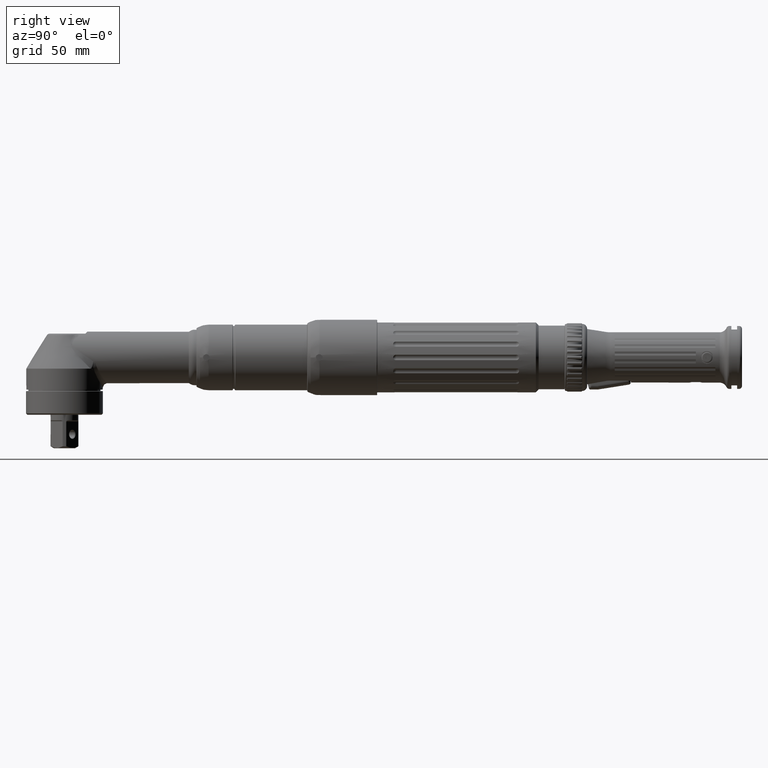
[diagram: clean part render]
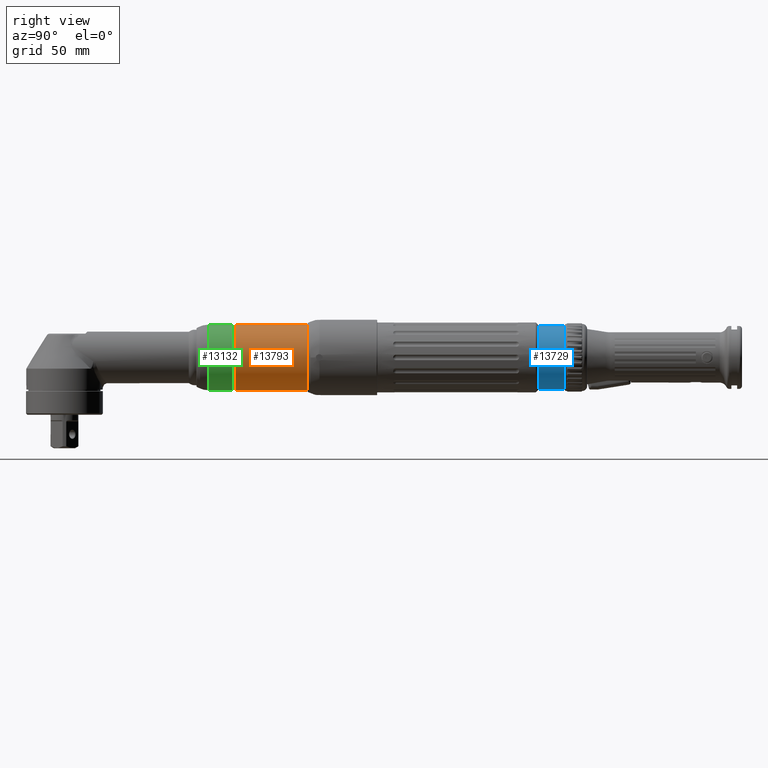
[diagram: same view with three faces highlighted in distinct colors, each labeled with its STEP entity id]
A machine part, right view with three faces highlighted in distinct colors.
Their STEP definitions:

[orange] entity #13793 — the highlighted cylindrical surface (bore or boss wall) has radius 23.5 mm, axis along (0, 1, -0).
#1781=CYLINDRICAL_SURFACE('',#15464,23.5);
#2089=FACE_BOUND('',#4427,.T.);
#3371=FACE_OUTER_BOUND('',#4426,.T.);
#4426=EDGE_LOOP('',(#11618));
#4427=EDGE_LOOP('',(#11619));
#5329=CIRCLE('',#15465,23.5);
#5330=CIRCLE('',#15466,23.5);
#6648=VERTEX_POINT('',#25377);
#6649=VERTEX_POINT('',#25379);
#8374=EDGE_CURVE('',#6648,#6648,#5329,.T.);
#8375=EDGE_CURVE('',#6649,#6649,#5330,.T.);
#11618=ORIENTED_EDGE('',*,*,#8374,.T.);
#11619=ORIENTED_EDGE('',*,*,#8375,.F.);
#13793=ADVANCED_FACE('',(#3371,#2089),#1781,.T.);
#15464=AXIS2_PLACEMENT_3D('',#25376,#19371,#19372);
#15465=AXIS2_PLACEMENT_3D('',#25378,#19373,#19374);
#15466=AXIS2_PLACEMENT_3D('',#25380,#19375,#19376);
#19371=DIRECTION('center_axis',(3.28120398570187E-18,1.,-7.88860905221012E-31));
#19372=DIRECTION('ref_axis',(2.4980018054066E-16,7.97253042510597E-31,1.));
#19373=DIRECTION('center_axis',(-2.53937745722183E-17,-1.,1.13142302886376E-16));
#19374=DIRECTION('ref_axis',(2.4980018054066E-16,7.97253042510597E-31,1.));
#19375=DIRECTION('center_axis',(-3.28120398570187E-18,-1.,7.88860905221012E-31));
#19376=DIRECTION('ref_axis',(-2.4980018054066E-16,-7.97253042510597E-31,
-1.));
#25376=CARTESIAN_POINT('Origin',(2.9803660295546E-14,153.5,-9.02376044615219E-14));
#25377=CARTESIAN_POINT('',(4.82597973920474E-14,173.75,23.4999999999999));
#25378=CARTESIAN_POINT('Origin',(2.98701046762565E-14,173.75,-9.02376044615219E-14));
#25379=CARTESIAN_POINT('',(3.26935069357021E-14,122.25,23.4999999999999));
#25380=CARTESIAN_POINT('Origin',(2.97011226709928E-14,122.25,-9.02376044615219E-14));

[blue] entity #13729 — the highlighted cylindrical surface (bore or boss wall) has radius 22.75 mm, axis along (0, 1, 0).
#1751=CYLINDRICAL_SURFACE('',#15338,22.75);
#2029=FACE_BOUND('',#4303,.T.);
#3307=FACE_OUTER_BOUND('',#4302,.T.);
#4302=EDGE_LOOP('',(#11478));
#4303=EDGE_LOOP('',(#11479));
#5266=CIRCLE('',#15337,22.75);
#5267=CIRCLE('',#15339,22.75);
#6579=VERTEX_POINT('',#25170);
#6580=VERTEX_POINT('',#25173);
#8301=EDGE_CURVE('',#6579,#6579,#5266,.T.);
#8302=EDGE_CURVE('',#6580,#6580,#5267,.T.);
#11478=ORIENTED_EDGE('',*,*,#8302,.F.);
#11479=ORIENTED_EDGE('',*,*,#8301,.F.);
#13729=ADVANCED_FACE('',(#3307,#2029),#1751,.T.);
#15337=AXIS2_PLACEMENT_3D('',#25171,#19107,#19108);
#15338=AXIS2_PLACEMENT_3D('',#25172,#19109,#19110);
#15339=AXIS2_PLACEMENT_3D('',#25174,#19111,#19112);
#19107=DIRECTION('center_axis',(-2.24771080739125E-15,-1.,-5.53995163027522E-15));
#19108=DIRECTION('ref_axis',(5.89199490515593E-47,5.68227460994035E-15,
-1.));
#19109=DIRECTION('center_axis',(1.02551917678732E-29,1.,5.68227460994035E-15));
#19110=DIRECTION('ref_axis',(5.89199490515593E-47,5.68227460994035E-15,
-1.));
#19111=DIRECTION('center_axis',(1.02551917678732E-29,1.,5.68227460994035E-15));
#19112=DIRECTION('ref_axis',(-1.,1.01628604643084E-29,5.76892440316545E-44));
#25170=CARTESIAN_POINT('',(1.12129423717977E-13,339.249999999998,-22.7499999999998));
#25171=CARTESIAN_POINT('Origin',(1.12129423717977E-13,339.249999999999,
1.9745268330937E-13));
#25172=CARTESIAN_POINT('Origin',(1.12129423717977E-13,348.449999999998,
2.49729609720817E-13));
#25173=CARTESIAN_POINT('',(1.12129423717977E-13,357.649999999998,-22.7499999999997));
#25174=CARTESIAN_POINT('Origin',(1.12129423717977E-13,357.649999999998,
3.02006536132268E-13));

[green] entity #13132 — the highlighted cylindrical surface (bore or boss wall) has radius 23.5 mm, axis along (0, 1, 0).
#1601=CYLINDRICAL_SURFACE('',#14020,23.5);
#1890=FACE_BOUND('',#3567,.T.);
#2710=FACE_OUTER_BOUND('',#3566,.T.);
#3566=EDGE_LOOP('',(#8737,#8738,#8739,#8740,#8741,#8742,#8743,#8744,#8745,
#8746,#8747,#8748));
#3567=EDGE_LOOP('',(#8749));
#4618=CIRCLE('',#14008,23.5);
#4619=CIRCLE('',#14009,23.5);
#4620=CIRCLE('',#14010,23.5);
#4621=CIRCLE('',#14011,23.5);
#4626=CIRCLE('',#14021,23.5);
#5411=B_SPLINE_CURVE_WITH_KNOTS('',3,(#20238,#20239,#20240,#20241,#20242,
#20243),.UNSPECIFIED.,.F.,.F.,(4,2,4),(-0.346790081006187,-0.260092696087759,
-0.182050218631956),.UNSPECIFIED.);
#5412=B_SPLINE_CURVE_WITH_KNOTS('',3,(#20244,#20245,#20246,#20247,#20248,
#20249),.UNSPECIFIED.,.F.,.F.,(4,2,4),(-0.511529943380419,-0.433487465924616,
-0.346790081006187),.UNSPECIFIED.);
#5414=B_SPLINE_CURVE_WITH_KNOTS('',3,(#20279,#20280,#20281,#20282,#20283,
#20284),.UNSPECIFIED.,.F.,.F.,(4,2,4),(-0.346790081006187,-0.260092696087759,
-0.182050218631957),.UNSPECIFIED.);
#5415=B_SPLINE_CURVE_WITH_KNOTS('',3,(#20286,#20287,#20288,#20289,#20290,
#20291),.UNSPECIFIED.,.F.,.F.,(4,2,4),(-0.511529943380418,-0.433487465924616,
-0.346790081006187),.UNSPECIFIED.);
#5418=B_SPLINE_CURVE_WITH_KNOTS('',3,(#20346,#20347,#20348,#20349,#20350,
#20351),.UNSPECIFIED.,.F.,.F.,(4,2,4),(-0.346790081006187,-0.260092696087759,
-0.182050218631957),.UNSPECIFIED.);
#5419=B_SPLINE_CURVE_WITH_KNOTS('',3,(#20352,#20353,#20354,#20355,#20356,
#20357),.UNSPECIFIED.,.F.,.F.,(4,2,4),(-0.511529943380418,-0.433487465924616,
-0.346790081006187),.UNSPECIFIED.);
#5421=B_SPLINE_CURVE_WITH_KNOTS('',3,(#20390,#20391,#20392,#20393,#20394,
#20395),.UNSPECIFIED.,.F.,.F.,(4,2,4),(-0.346790081006188,-0.260092696087759,
-0.182050218631957),.UNSPECIFIED.);
#5422=B_SPLINE_CURVE_WITH_KNOTS('',3,(#20396,#20397,#20398,#20399,#20400,
#20401),.UNSPECIFIED.,.F.,.F.,(4,2,4),(-0.511529943380418,-0.433487465924616,
-0.346790081006188),.UNSPECIFIED.);
#5591=VERTEX_POINT('',#20207);
#5592=VERTEX_POINT('',#20208);
#5593=VERTEX_POINT('',#20237);
#5597=VERTEX_POINT('',#20260);
#5599=VERTEX_POINT('',#20278);
#5600=VERTEX_POINT('',#20285);
#5603=VERTEX_POINT('',#20315);
#5604=VERTEX_POINT('',#20316);
#5605=VERTEX_POINT('',#20345);
#5606=VERTEX_POINT('',#20359);
#5607=VERTEX_POINT('',#20360);
#5608=VERTEX_POINT('',#20389);
#5615=VERTEX_POINT('',#20453);
#6833=EDGE_CURVE('',#5593,#5591,#5411,.T.);
#6834=EDGE_CURVE('',#5592,#5593,#5412,.T.);
#6839=EDGE_CURVE('',#5599,#5597,#5414,.T.);
#6840=EDGE_CURVE('',#5600,#5599,#5415,.T.);
#6845=EDGE_CURVE('',#5605,#5603,#5418,.T.);
#6846=EDGE_CURVE('',#5604,#5605,#5419,.T.);
#6848=EDGE_CURVE('',#5608,#5606,#5421,.T.);
#6849=EDGE_CURVE('',#5607,#5608,#5422,.T.);
#6853=EDGE_CURVE('',#5600,#5591,#4618,.T.);
#6854=EDGE_CURVE('',#5592,#5603,#4619,.T.);
#6855=EDGE_CURVE('',#5604,#5606,#4620,.T.);
#6856=EDGE_CURVE('',#5607,#5597,#4621,.T.);
#6861=EDGE_CURVE('',#5615,#5615,#4626,.T.);
#8737=ORIENTED_EDGE('',*,*,#6856,.F.);
#8738=ORIENTED_EDGE('',*,*,#6849,.T.);
#8739=ORIENTED_EDGE('',*,*,#6848,.T.);
#8740=ORIENTED_EDGE('',*,*,#6855,.F.);
#8741=ORIENTED_EDGE('',*,*,#6846,.T.);
#8742=ORIENTED_EDGE('',*,*,#6845,.T.);
#8743=ORIENTED_EDGE('',*,*,#6854,.F.);
#8744=ORIENTED_EDGE('',*,*,#6834,.T.);
#8745=ORIENTED_EDGE('',*,*,#6833,.T.);
#8746=ORIENTED_EDGE('',*,*,#6853,.F.);
#8747=ORIENTED_EDGE('',*,*,#6840,.T.);
#8748=ORIENTED_EDGE('',*,*,#6839,.T.);
#8749=ORIENTED_EDGE('',*,*,#6861,.F.);
#13132=ADVANCED_FACE('',(#2710,#1890),#1601,.T.);
#14008=AXIS2_PLACEMENT_3D('',#20436,#15824,#15825);
#14009=AXIS2_PLACEMENT_3D('',#20437,#15826,#15827);
#14010=AXIS2_PLACEMENT_3D('',#20438,#15828,#15829);
#14011=AXIS2_PLACEMENT_3D('',#20439,#15830,#15831);
#14020=AXIS2_PLACEMENT_3D('',#20452,#15848,#15849);
#14021=AXIS2_PLACEMENT_3D('',#20454,#15850,#15851);
#15824=DIRECTION('center_axis',(0.,-1.,0.));
#15825=DIRECTION('ref_axis',(-0.707106781186548,-5.50762367849798E-18,0.707106781186547));
#15826=DIRECTION('center_axis',(0.,-1.,0.));
#15827=DIRECTION('ref_axis',(-0.707106781186548,-5.50762367849798E-18,0.707106781186547));
#15828=DIRECTION('center_axis',(0.,-1.,0.));
#15829=DIRECTION('ref_axis',(-0.707106781186548,-5.50762367849798E-18,0.707106781186547));
#15830=DIRECTION('center_axis',(0.,-1.,0.));
#15831=DIRECTION('ref_axis',(-0.707106781186548,-5.50762367849798E-18,0.707106781186547));
#15848=DIRECTION('center_axis',(0.,1.,0.));
#15849=DIRECTION('ref_axis',(-1.54104573788574E-32,1.25835933998168E-16,
1.));
#15850=DIRECTION('center_axis',(0.,1.,0.));
#15851=DIRECTION('ref_axis',(6.12323399573677E-17,1.13106083928366E-18,
-1.));
#20207=CARTESIAN_POINT('',(1.56367712594623,103.186687240491,23.4479191794452));
#20208=CARTESIAN_POINT('',(-1.56367712594625,103.186687240491,23.4479191794452));
#20237=CARTESIAN_POINT('',(-1.15729122519425E-14,103.8,23.5));
#20238=CARTESIAN_POINT('Ctrl Pts',(-1.26287869051112E-14,103.8,23.5));
#20239=CARTESIAN_POINT('Ctrl Pts',(0.288991283061415,103.8,23.5));
#20240=CARTESIAN_POINT('Ctrl Pts',(0.597119438070636,103.742207170859,23.4941232068965));
#20241=CARTESIAN_POINT('Ctrl Pts',(1.13545525787975,103.519144980208,23.4739402612095));
#20242=CARTESIAN_POINT('Ctrl Pts',(1.37072982928056,103.365562888771,23.4607863030462));
#20243=CARTESIAN_POINT('Ctrl Pts',(1.56367712573369,103.18668724026,23.4479191794593));
#20244=CARTESIAN_POINT('Ctrl Pts',(-1.56367712573371,103.18668724026,23.4479191794593));
#20245=CARTESIAN_POINT('Ctrl Pts',(-1.37072982928058,103.365562888771,23.4607863030462));
#20246=CARTESIAN_POINT('Ctrl Pts',(-1.13545525787977,103.519144980208,23.4739402612095));
#20247=CARTESIAN_POINT('Ctrl Pts',(-0.59711943807066,103.742207170859,23.4941232068965));
#20248=CARTESIAN_POINT('Ctrl Pts',(-0.288991283061439,103.8,23.5));
#20249=CARTESIAN_POINT('Ctrl Pts',(-1.12410081243297E-14,103.8,23.5));
#20260=CARTESIAN_POINT('',(23.4479191794452,103.186687240491,-1.56367712594624));
#20278=CARTESIAN_POINT('',(23.5,103.8,-4.31687996699443E-15));
#20279=CARTESIAN_POINT('Ctrl Pts',(23.5,103.8,-5.41233724504764E-15));
#20280=CARTESIAN_POINT('Ctrl Pts',(23.5,103.8,-0.288991283061432));
#20281=CARTESIAN_POINT('Ctrl Pts',(23.4941232068965,103.742207170859,-0.597119438070652));
#20282=CARTESIAN_POINT('Ctrl Pts',(23.4739402612095,103.519144980208,-1.13545525787976));
#20283=CARTESIAN_POINT('Ctrl Pts',(23.4607863030462,103.365562888771,-1.37072982928058));
#20284=CARTESIAN_POINT('Ctrl Pts',(23.4479191794593,103.18668724026,-1.5636771257337));
#20285=CARTESIAN_POINT('',(23.4479191794452,103.186687240491,1.56367712594623));
#20286=CARTESIAN_POINT('Ctrl Pts',(23.4479191794593,103.18668724026,1.5636771257337));
#20287=CARTESIAN_POINT('Ctrl Pts',(23.4607863030462,103.365562888771,1.37072982928057));
#20288=CARTESIAN_POINT('Ctrl Pts',(23.4739402612095,103.519144980208,1.13545525787975));
#20289=CARTESIAN_POINT('Ctrl Pts',(23.4941232068965,103.742207170859,0.597119438070643));
#20290=CARTESIAN_POINT('Ctrl Pts',(23.5,103.8,0.288991283061423));
#20291=CARTESIAN_POINT('Ctrl Pts',(23.5,103.8,-4.37150315946155E-15));
#20315=CARTESIAN_POINT('',(-23.4479191794452,103.186687240491,1.56367712594624));
#20316=CARTESIAN_POINT('',(-23.4479191794452,103.186687240491,-1.56367712594623));
#20345=CARTESIAN_POINT('',(-23.5,103.8,1.43895998899814E-15));
#20346=CARTESIAN_POINT('Ctrl Pts',(-23.5,103.8,-1.94289029309402E-15));
#20347=CARTESIAN_POINT('Ctrl Pts',(-23.5,103.8,0.288991283061426));
#20348=CARTESIAN_POINT('Ctrl Pts',(-23.4941232068965,103.742207170859,0.597119438070648));
#20349=CARTESIAN_POINT('Ctrl Pts',(-23.4739402612096,103.519144980208,1.13545525787976));
#20350=CARTESIAN_POINT('Ctrl Pts',(-23.4607863030462,103.365562888771,1.37072982928057));
#20351=CARTESIAN_POINT('Ctrl Pts',(-23.4479191794594,103.18668724026,1.5636771257337));
#20352=CARTESIAN_POINT('Ctrl Pts',(-23.4479191794594,103.18668724026,-1.5636771257337));
#20353=CARTESIAN_POINT('Ctrl Pts',(-23.4607863030462,103.365562888771,-1.37072982928057));
#20354=CARTESIAN_POINT('Ctrl Pts',(-23.4739402612096,103.519144980208,-1.13545525787976));
#20355=CARTESIAN_POINT('Ctrl Pts',(-23.4941232068965,103.742207170859,-0.597119438070648));
#20356=CARTESIAN_POINT('Ctrl Pts',(-23.5,103.8,-0.288991283061428));
#20357=CARTESIAN_POINT('Ctrl Pts',(-23.5,103.8,-9.71445146547012E-16));
#20359=CARTESIAN_POINT('',(-1.56367712594625,103.186687240491,-23.4479191794452));
#20360=CARTESIAN_POINT('',(1.56367712594622,103.186687240491,-23.4479191794452));
#20389=CARTESIAN_POINT('',(-1.44508322299388E-14,103.8,-23.5));
#20390=CARTESIAN_POINT('Ctrl Pts',(-1.43982048506075E-14,103.8,-23.5));
#20391=CARTESIAN_POINT('Ctrl Pts',(-0.288991283061442,103.8,-23.5));
#20392=CARTESIAN_POINT('Ctrl Pts',(-0.597119438070663,103.742207170859,
-23.4941232068965));
#20393=CARTESIAN_POINT('Ctrl Pts',(-1.13545525787977,103.519144980208,-23.4739402612095));
#20394=CARTESIAN_POINT('Ctrl Pts',(-1.37072982928058,103.365562888771,-23.4607863030462));
#20395=CARTESIAN_POINT('Ctrl Pts',(-1.56367712573371,103.18668724026,-23.4479191794593));
#20396=CARTESIAN_POINT('Ctrl Pts',(1.56367712573366,103.18668724026,-23.4479191794593));
#20397=CARTESIAN_POINT('Ctrl Pts',(1.37072982928054,103.365562888771,-23.4607863030462));
#20398=CARTESIAN_POINT('Ctrl Pts',(1.13545525787974,103.519144980208,-23.4739402612095));
#20399=CARTESIAN_POINT('Ctrl Pts',(0.597119438070634,103.742207170859,-23.4941232068965));
#20400=CARTESIAN_POINT('Ctrl Pts',(0.288991283061411,103.8,-23.5));
#20401=CARTESIAN_POINT('Ctrl Pts',(-1.62370117351429E-14,103.8,-23.5));
#20436=CARTESIAN_POINT('Origin',(-1.15729122519425E-14,103.186687240918,
-1.23259516440783E-31));
#20437=CARTESIAN_POINT('Origin',(-1.15729122519425E-14,103.186687240918,
-1.23259516440783E-31));
#20438=CARTESIAN_POINT('Origin',(-1.15729122519425E-14,103.186687240918,
-1.23259516440783E-31));
#20439=CARTESIAN_POINT('Origin',(-1.15729122519425E-14,103.186687240918,
-1.23259516440783E-31));
#20452=CARTESIAN_POINT('Origin',(-1.15729122519425E-14,110.180633650637,
-2.46519032881566E-31));
#20453=CARTESIAN_POINT('',(-1.01339522629444E-14,120.,23.5));
#20454=CARTESIAN_POINT('Origin',(-1.15729122519425E-14,120.,0.));